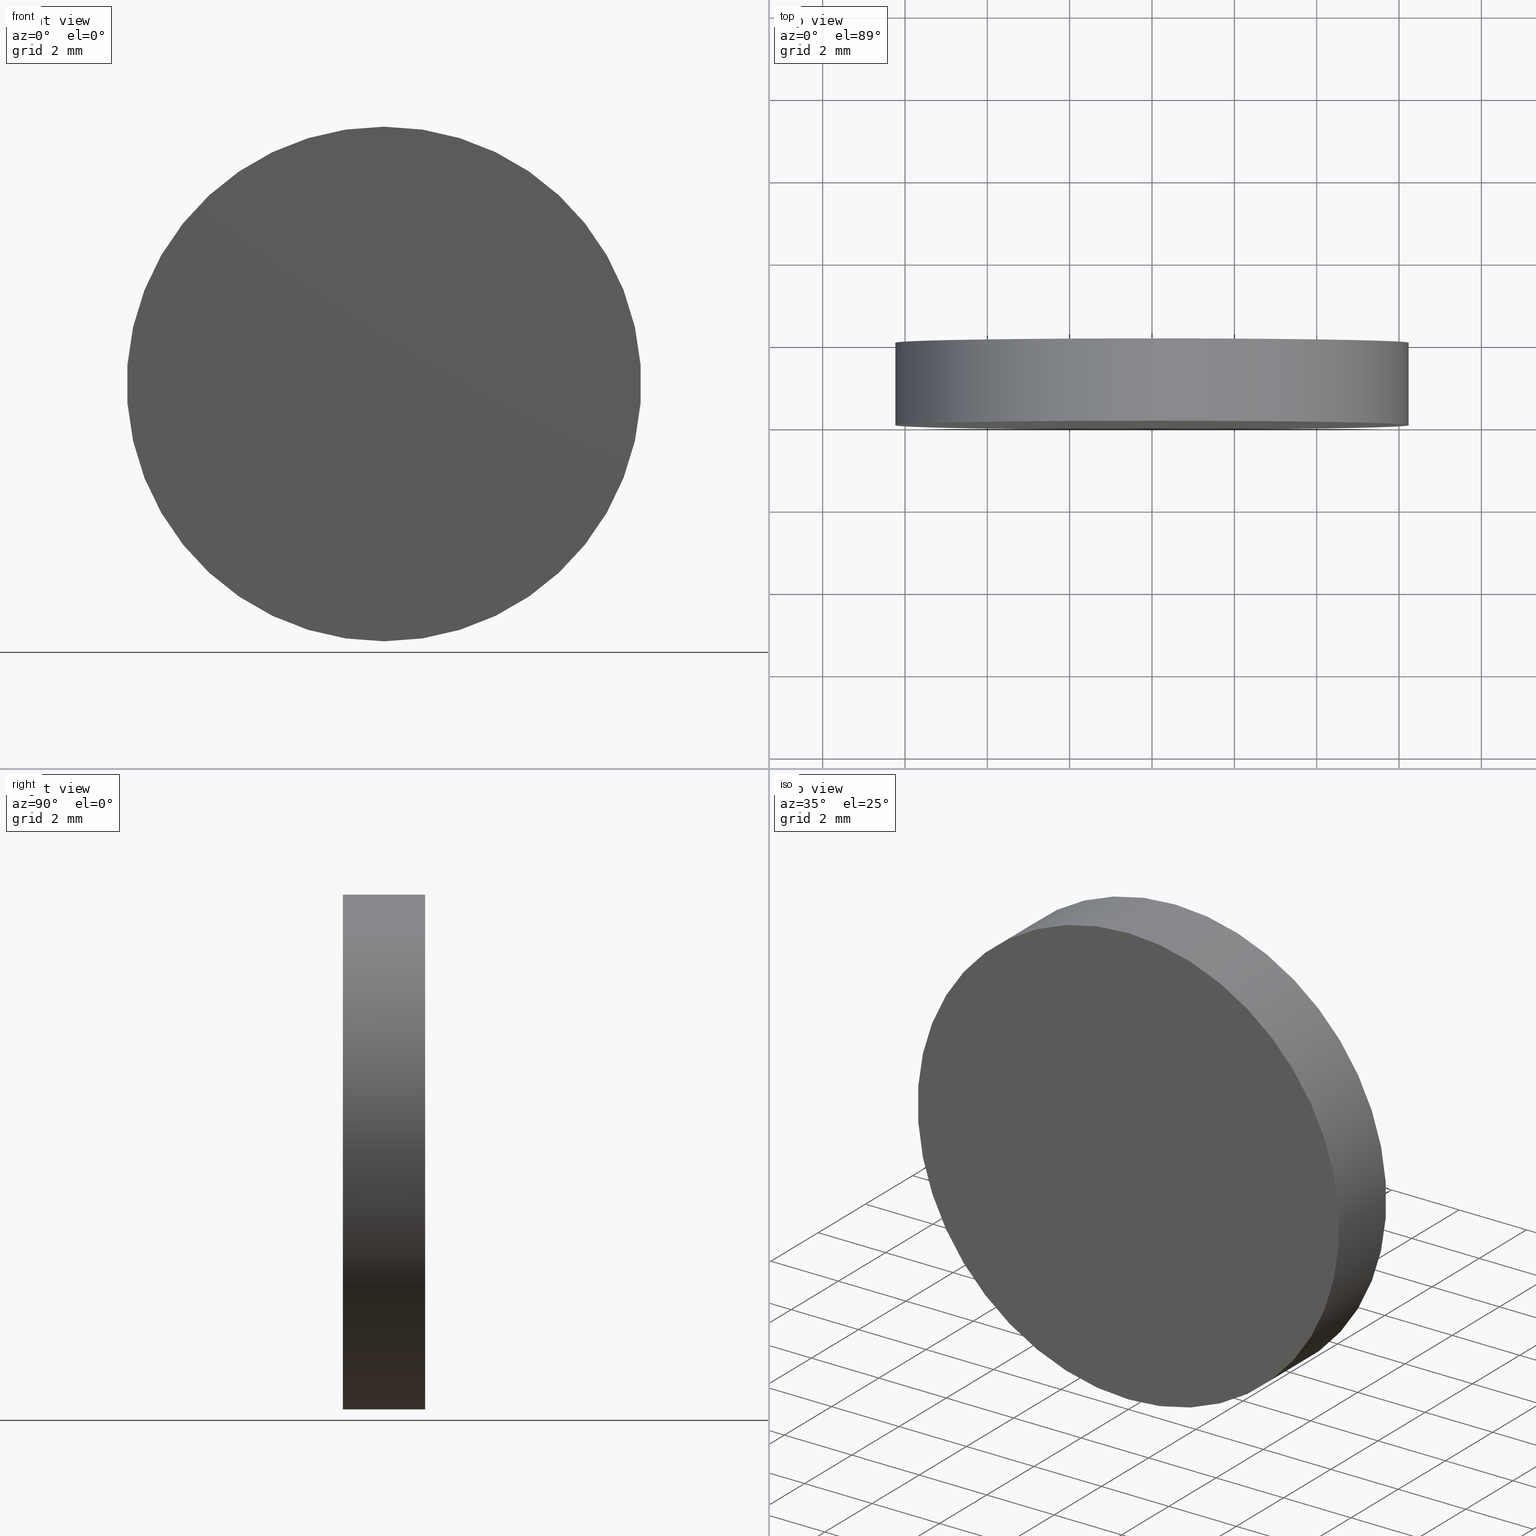
[diagram: canonical four-view strip — front | top / right | iso, engineering-drawing reading convention]
A machine part, canonical four-view strip (front | top / right | iso — engineering-drawing reading convention). The complete STEP part file that produces these views, byte-faithful:
ISO-10303-21;
HEADER;
FILE_DESCRIPTION (( 'STEP AP214' ),
    '1' );
FILE_NAME ('238500.STEP',
    '2019-07-30T07:27:07',
    ( 'user' ),
    ( '΢���й�' ),
    'SwSTEP 2.0',
    'SolidWorks 2016',
    '' );
FILE_SCHEMA (( 'AUTOMOTIVE_DESIGN' ));
ENDSEC;

DATA;
#1 = MECHANICAL_DESIGN_GEOMETRIC_PRESENTATION_REPRESENTATION (  '', ( #114 ), #22 ) ;
#2 = PRESENTATION_STYLE_ASSIGNMENT (( #45 ) ) ;
#3 = DIRECTION ( 'NONE',  ( 1.000000000000000000, 0.0000000000000000000, 0.0000000000000000000 ) ) ;
#4 = MANIFOLD_SOLID_BREP ( '͹̨-����1', #52 ) ;
#5 =( NAMED_UNIT ( * ) SI_UNIT ( $, .STERADIAN. ) SOLID_ANGLE_UNIT ( ) );
#6 = ORIENTED_EDGE ( 'NONE', *, *, #27, .F. ) ;
#7 = DIRECTION ( 'NONE',  ( 0.0000000000000000000, -0.0000000000000000000, 1.000000000000000000 ) ) ;
#8 = AXIS2_PLACEMENT_3D ( 'NONE', #87, #84, #3 ) ;
#9 = EDGE_CURVE ( 'NONE', #122, #105, #60, .T. ) ;
#10 =( NAMED_UNIT ( * ) SI_UNIT ( $, .STERADIAN. ) SOLID_ANGLE_UNIT ( ) );
#11 = ORIENTED_EDGE ( 'NONE', *, *, #9, .T. ) ;
#12 = PRODUCT_DEFINITION_SHAPE ( 'NONE', 'NONE',  #16 ) ;
#13 = ORIENTED_EDGE ( 'NONE', *, *, #119, .T. ) ;
#14 = AXIS2_PLACEMENT_3D ( 'NONE', #106, #30, #94 ) ;
#15 = UNCERTAINTY_MEASURE_WITH_UNIT (LENGTH_MEASURE( 1.000000000000000100E-005 ), #24, 'distance_accuracy_value', 'NONE');
#16 = PRODUCT_DEFINITION ( 'δ֪', '', #26, #44 ) ;
#17 = MECHANICAL_DESIGN_GEOMETRIC_PRESENTATION_REPRESENTATION (  '', ( #140 ), #71 ) ;
#18 = VECTOR ( 'NONE', #96, 1000.000000000000000 ) ;
#19 =( LENGTH_UNIT ( ) NAMED_UNIT ( * ) SI_UNIT ( .MILLI., .METRE. ) );
#20 = DIRECTION ( 'NONE',  ( 0.0000000000000000000, 0.0000000000000000000, -1.000000000000000000 ) ) ;
#21 = CARTESIAN_POINT ( 'NONE',  ( 0.0000000000000000000, 0.0000000000000000000, 0.0000000000000000000 ) ) ;
#22 =( GEOMETRIC_REPRESENTATION_CONTEXT ( 3 ) GLOBAL_UNCERTAINTY_ASSIGNED_CONTEXT ( ( #130 ) ) GLOBAL_UNIT_ASSIGNED_CONTEXT ( ( #104, #29, #93 ) ) REPRESENTATION_CONTEXT ( 'NONE', 'WORKASPACE' ) );
#23 = CYLINDRICAL_SURFACE ( 'NONE', #63, 6.250000000000000000 ) ;
#24 =( LENGTH_UNIT ( ) NAMED_UNIT ( * ) SI_UNIT ( .MILLI., .METRE. ) );
#25 = AXIS2_PLACEMENT_3D ( 'NONE', #49, #109, #32 ) ;
#26 = PRODUCT_DEFINITION_FORMATION_WITH_SPECIFIED_SOURCE ( '�κ�', '', #135, .NOT_KNOWN. ) ;
#27 = EDGE_CURVE ( 'NONE', #54, #122, #112, .T. ) ;
#28 = ADVANCED_FACE ( 'NONE', ( #81 ), #23, .T. ) ;
#29 =( NAMED_UNIT ( * ) PLANE_ANGLE_UNIT ( ) SI_UNIT ( $, .RADIAN. ) );
#30 = DIRECTION ( 'NONE',  ( 0.0000000000000000000, 1.000000000000000000, 0.0000000000000000000 ) ) ;
#31 = AXIS2_PLACEMENT_3D ( 'NONE', #21, #88, #7 ) ;
#32 = DIRECTION ( 'NONE',  ( 0.0000000000000000000, 0.0000000000000000000, 1.000000000000000000 ) ) ;
#33 = SURFACE_STYLE_FILL_AREA ( #111 ) ;
#34 = CARTESIAN_POINT ( 'NONE',  ( 7.654042494670957600E-016, 2.000000000000000000, 6.250000000000000000 ) ) ;
#35 = PRODUCT_RELATED_PRODUCT_CATEGORY ( 'part', '', ( #135 ) ) ;
#36 = EDGE_CURVE ( 'NONE', #105, #122, #55, .T. ) ;
#37 = SURFACE_SIDE_STYLE ('',( #33 ) ) ;
#38 = CARTESIAN_POINT ( 'NONE',  ( 0.0000000000000000000, 0.0000000000000000000, 0.0000000000000000000 ) ) ;
#39 = PRESENTATION_STYLE_ASSIGNMENT (( #98 ) ) ;
#40 = COLOUR_RGB ( '',1.000000000000000000, 1.000000000000000000, 1.000000000000000000 ) ;
#41 = ORIENTED_EDGE ( 'NONE', *, *, #36, .T. ) ;
#42 =( GEOMETRIC_REPRESENTATION_CONTEXT ( 3 ) GLOBAL_UNCERTAINTY_ASSIGNED_CONTEXT ( ( #91 ) ) GLOBAL_UNIT_ASSIGNED_CONTEXT ( ( #19, #85, #5 ) ) REPRESENTATION_CONTEXT ( 'NONE', 'WORKASPACE' ) );
#43 = EDGE_CURVE ( 'NONE', #46, #54, #83, .T. ) ;
#44 = PRODUCT_DEFINITION_CONTEXT ( 'detailed design', #136, 'design' ) ;
#45 = SURFACE_STYLE_USAGE ( .BOTH. , #115 ) ;
#46 = VERTEX_POINT ( 'NONE', #79 ) ;
#47 = CARTESIAN_POINT ( 'NONE',  ( 0.0000000000000000000, 2.000000000000000000, -6.250000000000000000 ) ) ;
#48 = ORIENTED_EDGE ( 'NONE', *, *, #9, .F. ) ;
#49 = CARTESIAN_POINT ( 'NONE',  ( 0.0000000000000000000, 2.000000000000000000, 0.0000000000000000000 ) ) ;
#50 = DIRECTION ( 'NONE',  ( 0.0000000000000000000, 0.0000000000000000000, -1.000000000000000000 ) ) ;
#51 = FILL_AREA_STYLE_COLOUR ( '', #66 ) ;
#52 = CLOSED_SHELL ( 'NONE', ( #120, #28, #82, #72 ) ) ;
#53 = SURFACE_STYLE_FILL_AREA ( #56 ) ;
#54 = VERTEX_POINT ( 'NONE', #34 ) ;
#55 = CIRCLE ( 'NONE', #113, 6.250000000000000000 ) ;
#56 = FILL_AREA_STYLE ('',( #57 ) ) ;
#57 = FILL_AREA_STYLE_COLOUR ( '', #40 ) ;
#58 = DIRECTION ( 'NONE',  ( 0.0000000000000000000, -0.0000000000000000000, 1.000000000000000000 ) ) ;
#59 = DIRECTION ( 'NONE',  ( 0.0000000000000000000, 1.000000000000000000, 0.0000000000000000000 ) ) ;
#60 = CIRCLE ( 'NONE', #90, 6.250000000000000000 ) ;
#61 = DIRECTION ( 'NONE',  ( -0.0000000000000000000, -1.000000000000000000, -0.0000000000000000000 ) ) ;
#62 = SHAPE_DEFINITION_REPRESENTATION ( #12, #121 ) ;
#63 = AXIS2_PLACEMENT_3D ( 'NONE', #69, #61, #50 ) ;
#64 = PRESENTATION_LAYER_ASSIGNMENT (  '', '', ( #140 ) ) ;
#65 = APPLICATION_PROTOCOL_DEFINITION ( 'draft international standard', 'automotive_design', 1998, #136 ) ;
#66 = COLOUR_RGB ( '',1.000000000000000000, 1.000000000000000000, 1.000000000000000000 ) ;
#67 = DIRECTION ( 'NONE',  ( 0.0000000000000000000, 1.000000000000000000, 0.0000000000000000000 ) ) ;
#68 = DIRECTION ( 'NONE',  ( 0.0000000000000000000, 1.000000000000000000, 0.0000000000000000000 ) ) ;
#69 = CARTESIAN_POINT ( 'NONE',  ( 0.0000000000000000000, 2.000000000000000000, 0.0000000000000000000 ) ) ;
#70 = EDGE_LOOP ( 'NONE', ( #95, #75, #11, #118 ) ) ;
#71 =( GEOMETRIC_REPRESENTATION_CONTEXT ( 3 ) GLOBAL_UNCERTAINTY_ASSIGNED_CONTEXT ( ( #15 ) ) GLOBAL_UNIT_ASSIGNED_CONTEXT ( ( #24, #89, #10 ) ) REPRESENTATION_CONTEXT ( 'NONE', 'WORKASPACE' ) );
#72 = ADVANCED_FACE ( 'NONE', ( #110 ), #116, .F. ) ;
#73 = CYLINDRICAL_SURFACE ( 'NONE', #107, 6.250000000000000000 ) ;
#74 = PRODUCT_CONTEXT ( 'NONE', #123, 'mechanical' ) ;
#75 = ORIENTED_EDGE ( 'NONE', *, *, #27, .T. ) ;
#76 = CARTESIAN_POINT ( 'NONE',  ( 7.654042494670957600E-016, 0.0000000000000000000, 6.250000000000000000 ) ) ;
#77 = ORIENTED_EDGE ( 'NONE', *, *, #43, .T. ) ;
#78 = DIRECTION ( 'NONE',  ( -0.0000000000000000000, -1.000000000000000000, -0.0000000000000000000 ) ) ;
#79 = CARTESIAN_POINT ( 'NONE',  ( 0.0000000000000000000, 2.000000000000000000, -6.250000000000000000 ) ) ;
#80 = FACE_OUTER_BOUND ( 'NONE', #70, .T. ) ;
#81 = FACE_OUTER_BOUND ( 'NONE', #101, .T. ) ;
#82 = ADVANCED_FACE ( 'NONE', ( #131 ), #125, .T. ) ;
#83 = CIRCLE ( 'NONE', #25, 6.250000000000000000 ) ;
#84 = DIRECTION ( 'NONE',  ( 0.0000000000000000000, 0.0000000000000000000, 1.000000000000000000 ) ) ;
#85 =( NAMED_UNIT ( * ) PLANE_ANGLE_UNIT ( ) SI_UNIT ( $, .RADIAN. ) );
#86 = PRESENTATION_LAYER_ASSIGNMENT (  '', '', ( #114 ) ) ;
#87 = CARTESIAN_POINT ( 'NONE',  ( 0.0000000000000000000, 0.0000000000000000000, 0.0000000000000000000 ) ) ;
#88 = DIRECTION ( 'NONE',  ( 0.0000000000000000000, 1.000000000000000000, 0.0000000000000000000 ) ) ;
#89 =( NAMED_UNIT ( * ) PLANE_ANGLE_UNIT ( ) SI_UNIT ( $, .RADIAN. ) );
#90 = AXIS2_PLACEMENT_3D ( 'NONE', #38, #68, #127 ) ;
#91 = UNCERTAINTY_MEASURE_WITH_UNIT (LENGTH_MEASURE( 1.000000000000000100E-005 ), #19, 'distance_accuracy_value', 'NONE');
#92 = EDGE_LOOP ( 'NONE', ( #124, #48 ) ) ;
#93 =( NAMED_UNIT ( * ) SI_UNIT ( $, .STERADIAN. ) SOLID_ANGLE_UNIT ( ) );
#94 = DIRECTION ( 'NONE',  ( 0.0000000000000000000, 0.0000000000000000000, 1.000000000000000000 ) ) ;
#95 = ORIENTED_EDGE ( 'NONE', *, *, #134, .F. ) ;
#96 = DIRECTION ( 'NONE',  ( -0.0000000000000000000, -1.000000000000000000, -0.0000000000000000000 ) ) ;
#97 = CARTESIAN_POINT ( 'NONE',  ( 0.0000000000000000000, 0.0000000000000000000, -6.250000000000000000 ) ) ;
#98 = SURFACE_STYLE_USAGE ( .BOTH. , #37 ) ;
#99 = EDGE_LOOP ( 'NONE', ( #77, #132 ) ) ;
#100 = CIRCLE ( 'NONE', #14, 6.250000000000000000 ) ;
#101 = EDGE_LOOP ( 'NONE', ( #6, #129, #13, #41 ) ) ;
#102 = AXIS2_PLACEMENT_3D ( 'NONE', #138, #59, #58 ) ;
#103 = LINE ( 'NONE', #47, #18 ) ;
#104 =( LENGTH_UNIT ( ) NAMED_UNIT ( * ) SI_UNIT ( .MILLI., .METRE. ) );
#105 = VERTEX_POINT ( 'NONE', #97 ) ;
#106 = CARTESIAN_POINT ( 'NONE',  ( 0.0000000000000000000, 2.000000000000000000, 0.0000000000000000000 ) ) ;
#107 = AXIS2_PLACEMENT_3D ( 'NONE', #108, #78, #20 ) ;
#108 = CARTESIAN_POINT ( 'NONE',  ( 0.0000000000000000000, 2.000000000000000000, 0.0000000000000000000 ) ) ;
#109 = DIRECTION ( 'NONE',  ( 0.0000000000000000000, 1.000000000000000000, 0.0000000000000000000 ) ) ;
#110 = FACE_OUTER_BOUND ( 'NONE', #92, .T. ) ;
#111 = FILL_AREA_STYLE ('',( #51 ) ) ;
#112 = LINE ( 'NONE', #117, #133 ) ;
#113 = AXIS2_PLACEMENT_3D ( 'NONE', #139, #67, #126 ) ;
#114 = STYLED_ITEM ( 'NONE', ( #2 ), #121 ) ;
#115 = SURFACE_SIDE_STYLE ('',( #53 ) ) ;
#116 = PLANE ( 'NONE',  #31 ) ;
#117 = CARTESIAN_POINT ( 'NONE',  ( 7.654042494670957600E-016, 2.000000000000000000, 6.250000000000000000 ) ) ;
#118 = ORIENTED_EDGE ( 'NONE', *, *, #119, .F. ) ;
#119 = EDGE_CURVE ( 'NONE', #46, #105, #103, .T. ) ;
#120 = ADVANCED_FACE ( 'NONE', ( #80 ), #73, .T. ) ;
#121 = ADVANCED_BREP_SHAPE_REPRESENTATION ( '238500', ( #4, #8 ), #42 ) ;
#122 = VERTEX_POINT ( 'NONE', #76 ) ;
#123 = APPLICATION_CONTEXT ( 'automotive_design' ) ;
#124 = ORIENTED_EDGE ( 'NONE', *, *, #36, .F. ) ;
#125 = PLANE ( 'NONE',  #102 ) ;
#126 = DIRECTION ( 'NONE',  ( 0.0000000000000000000, 0.0000000000000000000, 1.000000000000000000 ) ) ;
#127 = DIRECTION ( 'NONE',  ( 0.0000000000000000000, 0.0000000000000000000, 1.000000000000000000 ) ) ;
#128 = DIRECTION ( 'NONE',  ( -0.0000000000000000000, -1.000000000000000000, -0.0000000000000000000 ) ) ;
#129 = ORIENTED_EDGE ( 'NONE', *, *, #43, .F. ) ;
#130 = UNCERTAINTY_MEASURE_WITH_UNIT (LENGTH_MEASURE( 1.000000000000000100E-005 ), #104, 'distance_accuracy_value', 'NONE');
#131 = FACE_OUTER_BOUND ( 'NONE', #99, .T. ) ;
#132 = ORIENTED_EDGE ( 'NONE', *, *, #134, .T. ) ;
#133 = VECTOR ( 'NONE', #128, 1000.000000000000000 ) ;
#134 = EDGE_CURVE ( 'NONE', #54, #46, #100, .T. ) ;
#135 = PRODUCT ( '238500', '238500', '', ( #74 ) ) ;
#136 = APPLICATION_CONTEXT ( 'automotive_design' ) ;
#137 = APPLICATION_PROTOCOL_DEFINITION ( 'draft international standard', 'automotive_design', 1998, #123 ) ;
#138 = CARTESIAN_POINT ( 'NONE',  ( 0.0000000000000000000, 2.000000000000000000, 0.0000000000000000000 ) ) ;
#139 = CARTESIAN_POINT ( 'NONE',  ( 0.0000000000000000000, 0.0000000000000000000, 0.0000000000000000000 ) ) ;
#140 = STYLED_ITEM ( 'NONE', ( #39 ), #4 ) ;
ENDSEC;
END-ISO-10303-21;
